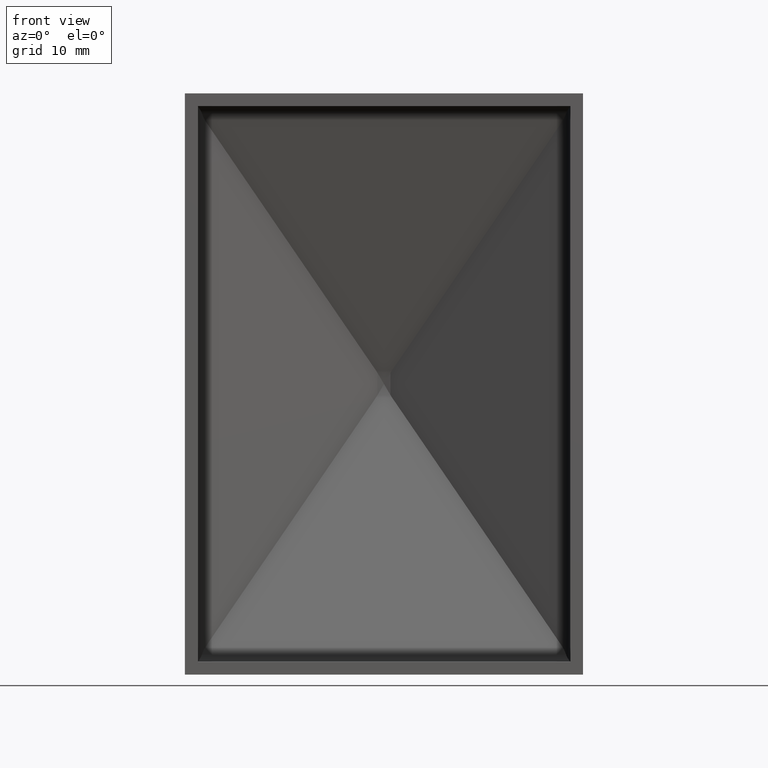
[diagram: clean part render]
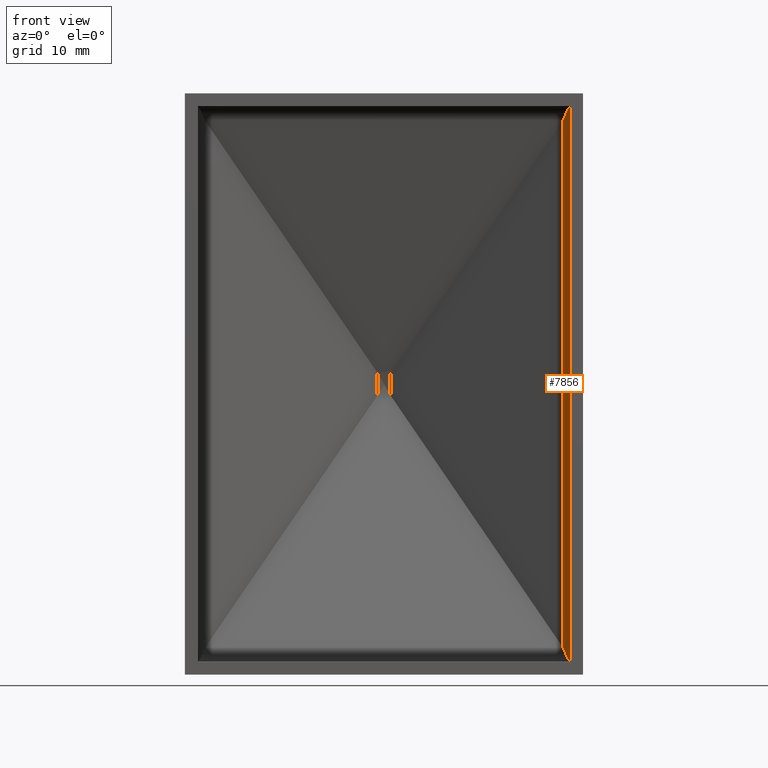
[diagram: same view with one face highlighted and labeled with its STEP entity id]
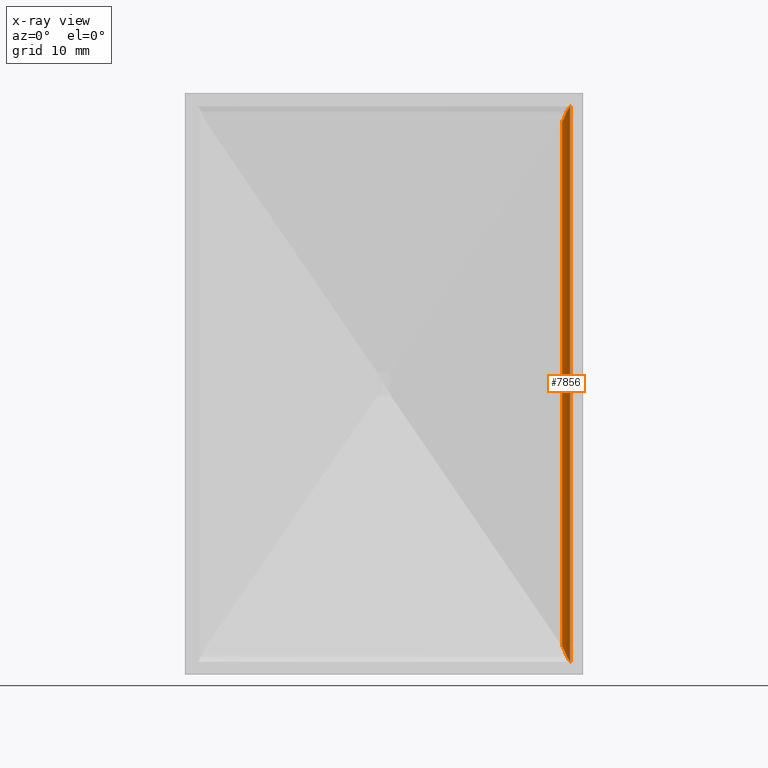
[diagram: x-ray of the same camera — body ghosted, the highlighted face saturated]
A machine part, front view. The second image highlights one B-rep face of the part: STEP entity #7856.
The next image is the same camera in x-ray: the body ghosted, the highlighted face saturated — about 0% of this face is hidden behind the body in this view.
In plain terms, the highlighted cylindrical surface (edge-blend (fillet) strip) has radius 1.6 mm, axis along (-0, -0, -1).
Its self-contained STEP definition (entity closure, byte-faithful):
#238 = VERTEX_POINT ( 'NONE', #16636 ) ;
#469 = AXIS2_PLACEMENT_3D ( 'NONE', #13573, #4544, #5941 ) ;
#523 = DIRECTION ( 'NONE',  ( -0.000000000000000000, -0.000000000000000000, -1.000000000000000000 ) ) ;
#604 = EDGE_CURVE ( 'NONE', #7322, #1591, #8519, .T. ) ;
#678 = ORIENTED_EDGE ( 'NONE', *, *, #6369, .T. ) ;
#860 = CARTESIAN_POINT ( 'NONE',  ( 19.46436875921772014, 10.57586825159577515, -28.65772203017585795 ) ) ;
#863 = CARTESIAN_POINT ( 'NONE',  ( 19.92252991410145313, 10.23431990854651730, -29.65870718101348658 ) ) ;
#894 = LINE ( 'NONE', #9715, #2306 ) ;
#918 = CARTESIAN_POINT ( 'NONE',  ( 20.27398073697390046, 9.647252740899107337, -30.24639273485940194 ) ) ;
#1396 = FACE_OUTER_BOUND ( 'NONE', #3461, .T. ) ;
#1591 = VERTEX_POINT ( 'NONE', #15400 ) ;
#1640 = EDGE_CURVE ( 'NONE', #11252, #1591, #16926, .T. ) ;
#1777 = CARTESIAN_POINT ( 'NONE',  ( 19.46436875921772014, 10.57586825159577515, 31.75000000000000000 ) ) ;
#1988 = CYLINDRICAL_SURFACE ( 'NONE', #469, 1.599999999999986766 ) ;
#2306 = VECTOR ( 'NONE', #4441, 1000.000000000000000 ) ;
#2754 = CARTESIAN_POINT ( 'NONE',  ( 20.23162462296690478, 9.757775957155836011, 30.18736389259912301 ) ) ;
#3097 = CARTESIAN_POINT ( 'NONE',  ( 19.88263512840536862, 10.27430400687512702, -29.54152468105096219 ) ) ;
#3461 = EDGE_LOOP ( 'NONE', ( #678, #10184, #15288, #11091, #6619, #8399 ) ) ;
#3569 = CARTESIAN_POINT ( 'NONE',  ( 20.23162462296690833, 9.757775957155823576, -30.18736389259913011 ) ) ;
#3837 = CARTESIAN_POINT ( 'NONE',  ( 20.13561398191700036, 9.951516806489959066, 30.04394667136521946 ) ) ;
#4441 = DIRECTION ( 'NONE',  ( -0.000000000000000000, -0.000000000000000000, -1.000000000000000000 ) ) ;
#4544 = DIRECTION ( 'NONE',  ( -0.000000000000000000, -0.000000000000000000, -1.000000000000000000 ) ) ;
#4689 = CARTESIAN_POINT ( 'NONE',  ( 20.35000000000000142, 9.275508540343842867, -30.35000000000000853 ) ) ;
#4799 = CARTESIAN_POINT ( 'NONE',  ( 20.33355800977525263, 9.404822205742830121, -30.32821233054786347 ) ) ;
#4906 = CARTESIAN_POINT ( 'NONE',  ( 20.13561398191700746, 9.951516806489953737, -30.04394667136521591 ) ) ;
#5046 = CARTESIAN_POINT ( 'NONE',  ( 20.34999999999999787, 9.144198849864448420, 30.35000000000000142 ) ) ;
#5158 = CARTESIAN_POINT ( 'NONE',  ( 19.97510249989858977, 10.17708032941559715, 29.76670351309607199 ) ) ;
#5941 = DIRECTION ( 'NONE',  ( -1.000000000000000000, 0.000000000000000000, 0.000000000000000000 ) ) ;
#5989 = CARTESIAN_POINT ( 'NONE',  ( 19.61951843628896697, 10.49845227681248971, -28.88460716305003118 ) ) ;
#6216 =( BOUNDED_CURVE ( )  B_SPLINE_CURVE ( 3, ( #15176, #5989, #7708, #3097 ),
 .UNSPECIFIED., .F., .F. ) 
 B_SPLINE_CURVE_WITH_KNOTS ( ( 4, 4 ),
 ( 3.604420776204907639, 3.928108917176071468 ),
 .UNSPECIFIED. ) 
 CURVE ( )  GEOMETRIC_REPRESENTATION_ITEM ( )  RATIONAL_B_SPLINE_CURVE ( ( 1.000000000000000000, 0.9912878739729521493, 0.9912878739729521493, 1.000000000000000000 ) ) 
 REPRESENTATION_ITEM ( '' )  );
#6247 = CARTESIAN_POINT ( 'NONE',  ( 19.88263512840536862, 10.27430400687512702, -29.54152468105096219 ) ) ;
#6332 = CARTESIAN_POINT ( 'NONE',  ( 20.35000000000000142, 9.275508540343867736, 30.34999999999999787 ) ) ;
#6369 = EDGE_CURVE ( 'NONE', #8248, #16641, #6216, .T. ) ;
#6619 = ORIENTED_EDGE ( 'NONE', *, *, #604, .F. ) ;
#7001 = B_SPLINE_CURVE_WITH_KNOTS ( 'NONE', 3,
 ( #12528, #4689, #4799, #918, #3569, #4906, #8638, #7417, #863, #13928 ),
 .UNSPECIFIED., .F., .F.,
 ( 4, 2, 2, 2, 4 ),
 ( 0.007309536589927030995, 0.007698250168877883264, 0.008086963747828735533, 0.008475677326779586934, 0.008864390905730440071 ),
 .UNSPECIFIED. ) ;
#7322 = VERTEX_POINT ( 'NONE', #12041 ) ;
#7417 = CARTESIAN_POINT ( 'NONE',  ( 19.97510249989858266, 10.17708032941560248, -29.76670351309606843 ) ) ;
#7708 = CARTESIAN_POINT ( 'NONE',  ( 19.76016589776124377, 10.39704740992553589, -29.18179720376373609 ) ) ;
#7856 = ADVANCED_FACE ( 'NONE', ( #1396 ), #1988, .F. ) ;
#7984 = CARTESIAN_POINT ( 'NONE',  ( 19.88263512840537572, 10.27430400687512169, 29.54152468105098350 ) ) ;
#8248 = VERTEX_POINT ( 'NONE', #860 ) ;
#8399 = ORIENTED_EDGE ( 'NONE', *, *, #16866, .T. ) ;
#8519 =( BOUNDED_CURVE ( )  B_SPLINE_CURVE ( 3, ( #15477, #12854, #12908, #10445 ),
 .UNSPECIFIED., .F., .T. ) 
 B_SPLINE_CURVE_WITH_KNOTS ( ( 4, 4 ),
 ( 0.4628281226151138572, 0.7865162635862834595 ),
 .UNSPECIFIED. ) 
 CURVE ( )  GEOMETRIC_REPRESENTATION_ITEM ( )  RATIONAL_B_SPLINE_CURVE ( ( 1.000000000000000000, 0.9912878739729518163, 0.9912878739729518163, 1.000000000000000000 ) ) 
 REPRESENTATION_ITEM ( '' )  );
#8638 = CARTESIAN_POINT ( 'NONE',  ( 20.08083732674365152, 10.03671904336337306, -29.95798482206022939 ) ) ;
#9715 = CARTESIAN_POINT ( 'NONE',  ( 20.35000000000000142, 9.144198849864443090, 31.75000000000000000 ) ) ;
#10184 = ORIENTED_EDGE ( 'NONE', *, *, #12991, .F. ) ;
#10445 = CARTESIAN_POINT ( 'NONE',  ( 19.88263512840537572, 10.27430400687512169, 29.54152468105098350 ) ) ;
#10506 = LINE ( 'NONE', #1777, #16166 ) ;
#11091 = ORIENTED_EDGE ( 'NONE', *, *, #1640, .T. ) ;
#11252 = VERTEX_POINT ( 'NONE', #12343 ) ;
#11744 = CARTESIAN_POINT ( 'NONE',  ( 20.08083732674365152, 10.03671904336337128, 29.95798482206022939 ) ) ;
#12041 = CARTESIAN_POINT ( 'NONE',  ( 19.46436875921772014, 10.57586825159577515, 28.65772203017585440 ) ) ;
#12343 = CARTESIAN_POINT ( 'NONE',  ( 20.34999999999999787, 9.144198849864448420, 30.35000000000000142 ) ) ;
#12528 = CARTESIAN_POINT ( 'NONE',  ( 20.34999999999999787, 9.144198849864418222, -30.35000000000000142 ) ) ;
#12854 = CARTESIAN_POINT ( 'NONE',  ( 19.61951843628897052, 10.49845227681248971, 28.88460716305004183 ) ) ;
#12890 = CARTESIAN_POINT ( 'NONE',  ( 20.27398073697390046, 9.647252740899119772, 30.24639273485939484 ) ) ;
#12908 = CARTESIAN_POINT ( 'NONE',  ( 19.76016589776125443, 10.39704740992553234, 29.18179720376375386 ) ) ;
#12991 = EDGE_CURVE ( 'NONE', #238, #16641, #7001, .T. ) ;
#13573 = CARTESIAN_POINT ( 'NONE',  ( 18.75000000000001421, 9.144198849864443090, 31.75000000000000000 ) ) ;
#13928 = CARTESIAN_POINT ( 'NONE',  ( 19.88263512840536862, 10.27430400687512702, -29.54152468105096219 ) ) ;
#15176 = CARTESIAN_POINT ( 'NONE',  ( 19.46436875921772014, 10.57586825159577515, -28.65772203017585795 ) ) ;
#15288 = ORIENTED_EDGE ( 'NONE', *, *, #16840, .F. ) ;
#15400 = CARTESIAN_POINT ( 'NONE',  ( 19.88263512840537572, 10.27430400687512169, 29.54152468105098350 ) ) ;
#15477 = CARTESIAN_POINT ( 'NONE',  ( 19.46436875921772014, 10.57586825159577515, 28.65772203017585440 ) ) ;
#15737 = CARTESIAN_POINT ( 'NONE',  ( 19.92252991410145668, 10.23431990854651197, 29.65870718101349013 ) ) ;
#16166 = VECTOR ( 'NONE', #523, 1000.000000000000000 ) ;
#16636 = CARTESIAN_POINT ( 'NONE',  ( 20.34999999999999787, 9.144198849864418222, -30.35000000000000142 ) ) ;
#16641 = VERTEX_POINT ( 'NONE', #6247 ) ;
#16705 = CARTESIAN_POINT ( 'NONE',  ( 20.33355800977524908, 9.404822205742856767, 30.32821233054785637 ) ) ;
#16840 = EDGE_CURVE ( 'NONE', #11252, #238, #894, .T. ) ;
#16866 = EDGE_CURVE ( 'NONE', #7322, #8248, #10506, .T. ) ;
#16926 = B_SPLINE_CURVE_WITH_KNOTS ( 'NONE', 3,
 ( #5046, #6332, #16705, #12890, #2754, #3837, #11744, #5158, #15737, #7984 ),
 .UNSPECIFIED., .F., .F.,
 ( 4, 2, 2, 2, 4 ),
 ( 0.007309536589927062220, 0.007698250168877901478, 0.008086963747828742471, 0.008475677326779581730, 0.008864390905730420989 ),
 .UNSPECIFIED. ) ;